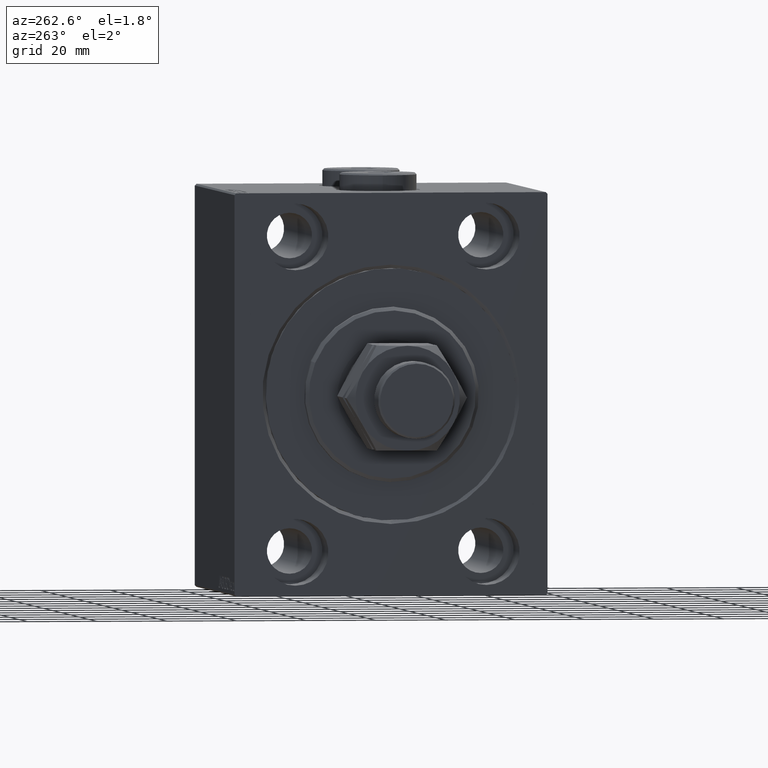
[diagram: clean part render]
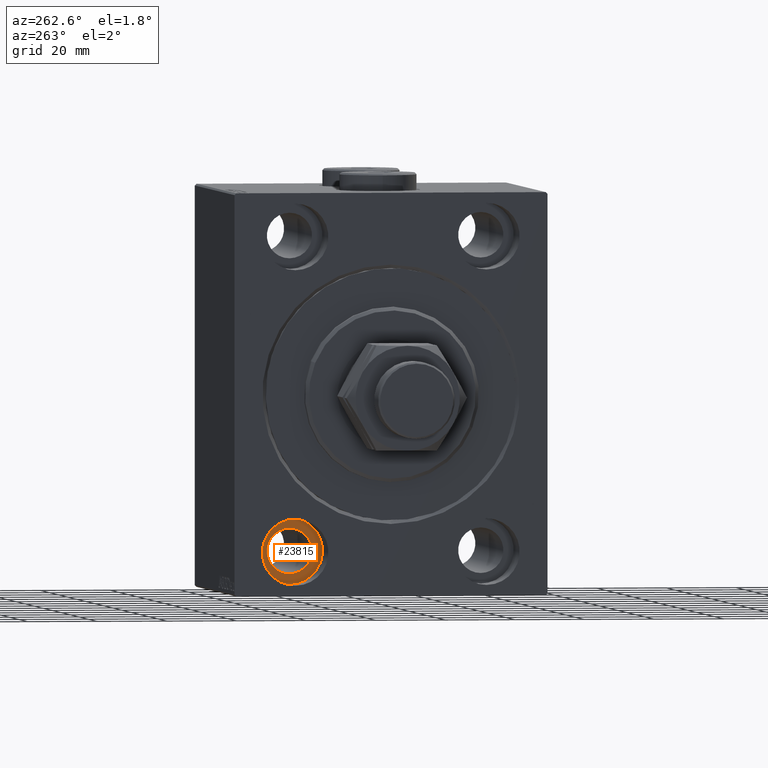
[diagram: same view with one face highlighted and labeled with its STEP entity id]
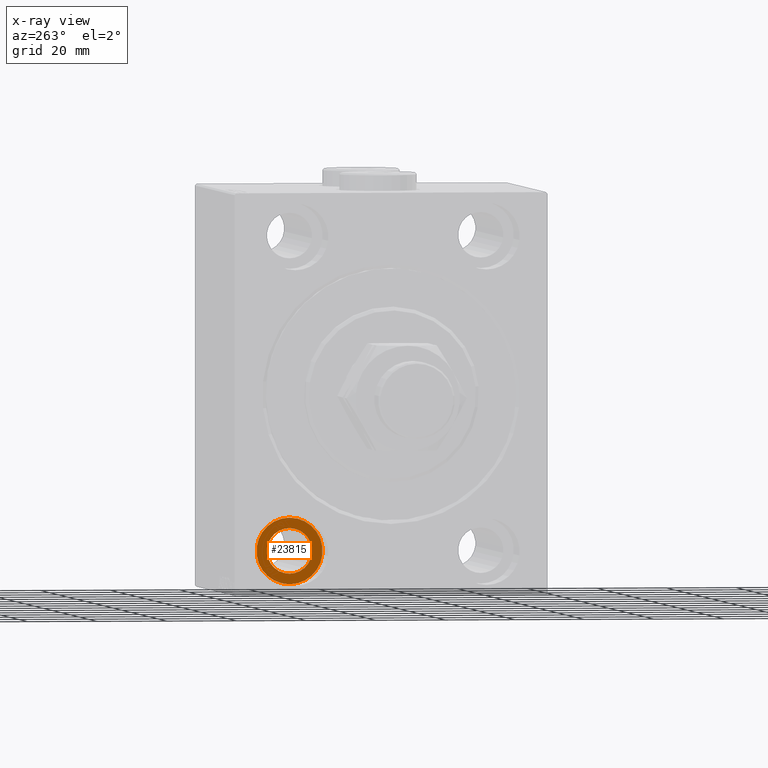
[diagram: x-ray of the same camera — body ghosted, the highlighted face saturated]
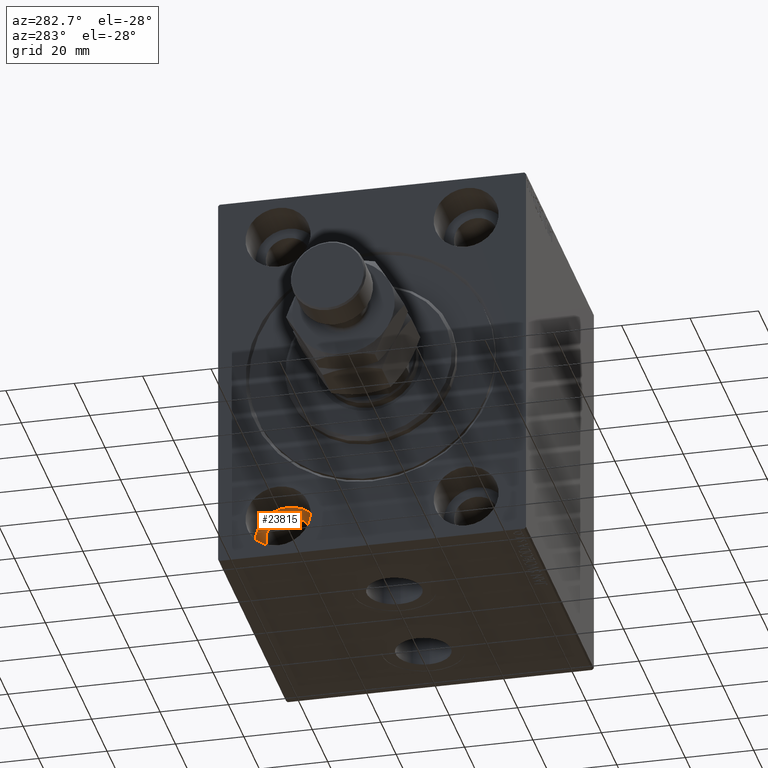
[diagram: same view with one face highlighted and labeled with its STEP entity id]
A machine part, auxiliary view. The second image highlights one B-rep face of the part: STEP entity #23815.
The next image is the same camera in x-ray: the body ghosted, the highlighted face saturated — about 0% of this face is hidden behind the body in this view.
A second angle (auxiliary view) of the same face is appended — the face is thin or edge-on in the first view.
In plain terms, the highlighted planar face has unit normal (-1, 0, 0).
Its self-contained STEP definition (entity closure, byte-faithful):
#732 = DIRECTION ( 'NONE',  ( -1.000000000000000000, 0.000000000000000000, 0.000000000000000000 ) ) ;
#2213 = AXIS2_PLACEMENT_3D ( 'NONE', #22104, #36533, #5051 ) ;
#3079 = EDGE_LOOP ( 'NONE', ( #13078, #5184 ) ) ;
#3983 = PLANE ( 'NONE',  #7454 ) ;
#5051 = DIRECTION ( 'NONE',  ( 0.000000000000000000, 0.000000000000000000, 1.000000000000000000 ) ) ;
#5098 = VERTEX_POINT ( 'NONE', #21631 ) ;
#5184 = ORIENTED_EDGE ( 'NONE', *, *, #26270, .T. ) ;
#5680 = DIRECTION ( 'NONE',  ( -1.000000000000000000, 0.000000000000000000, 0.000000000000000000 ) ) ;
#7454 = AXIS2_PLACEMENT_3D ( 'NONE', #7998, #18409, #14864 ) ;
#7536 = FACE_BOUND ( 'NONE', #14072, .T. ) ;
#7917 = AXIS2_PLACEMENT_3D ( 'NONE', #45656, #5680, #19859 ) ;
#7998 = CARTESIAN_POINT ( 'NONE',  ( 13.00000000000000000, 27.49999999999998934, -44.99999999999998579 ) ) ;
#10393 = DIRECTION ( 'NONE',  ( -1.000000000000000000, 0.000000000000000000, 0.000000000000000000 ) ) ;
#11374 = CARTESIAN_POINT ( 'NONE',  ( 13.00000000000000000, 27.49999999999998934, -44.99999999999998579 ) ) ;
#13078 = ORIENTED_EDGE ( 'NONE', *, *, #34510, .T. ) ;
#14072 = EDGE_LOOP ( 'NONE', ( #35256, #14848 ) ) ;
#14848 = ORIENTED_EDGE ( 'NONE', *, *, #45040, .F. ) ;
#14864 = DIRECTION ( 'NONE',  ( 0.000000000000000000, 0.000000000000000000, 1.000000000000000000 ) ) ;
#15150 = CIRCLE ( 'NONE', #2213, 6.499999999999999112 ) ;
#17263 = CARTESIAN_POINT ( 'NONE',  ( 13.00000000000000000, 27.49999999999998934, -44.99999999999998579 ) ) ;
#17393 = AXIS2_PLACEMENT_3D ( 'NONE', #17263, #10393, #39487 ) ;
#18409 = DIRECTION ( 'NONE',  ( -1.000000000000000000, 0.000000000000000000, 0.000000000000000000 ) ) ;
#19859 = DIRECTION ( 'NONE',  ( 0.000000000000000000, 0.000000000000000000, 1.000000000000000000 ) ) ;
#20284 = CARTESIAN_POINT ( 'NONE',  ( 13.00000000000000000, 27.49999999999998934, -35.49999999999998579 ) ) ;
#21631 = CARTESIAN_POINT ( 'NONE',  ( 13.00000000000000000, 27.49999999999998934, -54.49999999999998579 ) ) ;
#22104 = CARTESIAN_POINT ( 'NONE',  ( 12.99999999999999822, 27.49999999999998934, -44.99999999999998579 ) ) ;
#23815 = ADVANCED_FACE ( 'NONE', ( #7536, #36394 ), #3983, .T. ) ;
#24125 = AXIS2_PLACEMENT_3D ( 'NONE', #11374, #732, #36228 ) ;
#25733 = VERTEX_POINT ( 'NONE', #35936 ) ;
#26270 = EDGE_CURVE ( 'NONE', #5098, #41546, #46799, .T. ) ;
#30592 = EDGE_CURVE ( 'NONE', #25733, #42923, #15150, .T. ) ;
#34510 = EDGE_CURVE ( 'NONE', #41546, #5098, #45386, .T. ) ;
#35256 = ORIENTED_EDGE ( 'NONE', *, *, #30592, .F. ) ;
#35936 = CARTESIAN_POINT ( 'NONE',  ( 12.99999999999999822, 27.49999999999998934, -38.49999999999998579 ) ) ;
#36228 = DIRECTION ( 'NONE',  ( 0.000000000000000000, 0.000000000000000000, 1.000000000000000000 ) ) ;
#36394 = FACE_OUTER_BOUND ( 'NONE', #3079, .T. ) ;
#36533 = DIRECTION ( 'NONE',  ( -1.000000000000000000, 0.000000000000000000, 0.000000000000000000 ) ) ;
#36624 = CIRCLE ( 'NONE', #7917, 6.499999999999999112 ) ;
#38605 = CARTESIAN_POINT ( 'NONE',  ( 12.99999999999999822, 27.49999999999998934, -51.49999999999998579 ) ) ;
#39487 = DIRECTION ( 'NONE',  ( 0.000000000000000000, 0.000000000000000000, 1.000000000000000000 ) ) ;
#41546 = VERTEX_POINT ( 'NONE', #20284 ) ;
#42923 = VERTEX_POINT ( 'NONE', #38605 ) ;
#45040 = EDGE_CURVE ( 'NONE', #42923, #25733, #36624, .T. ) ;
#45386 = CIRCLE ( 'NONE', #17393, 9.500000000000001776 ) ;
#45656 = CARTESIAN_POINT ( 'NONE',  ( 12.99999999999999822, 27.49999999999998934, -44.99999999999998579 ) ) ;
#46799 = CIRCLE ( 'NONE', #24125, 9.500000000000001776 ) ;